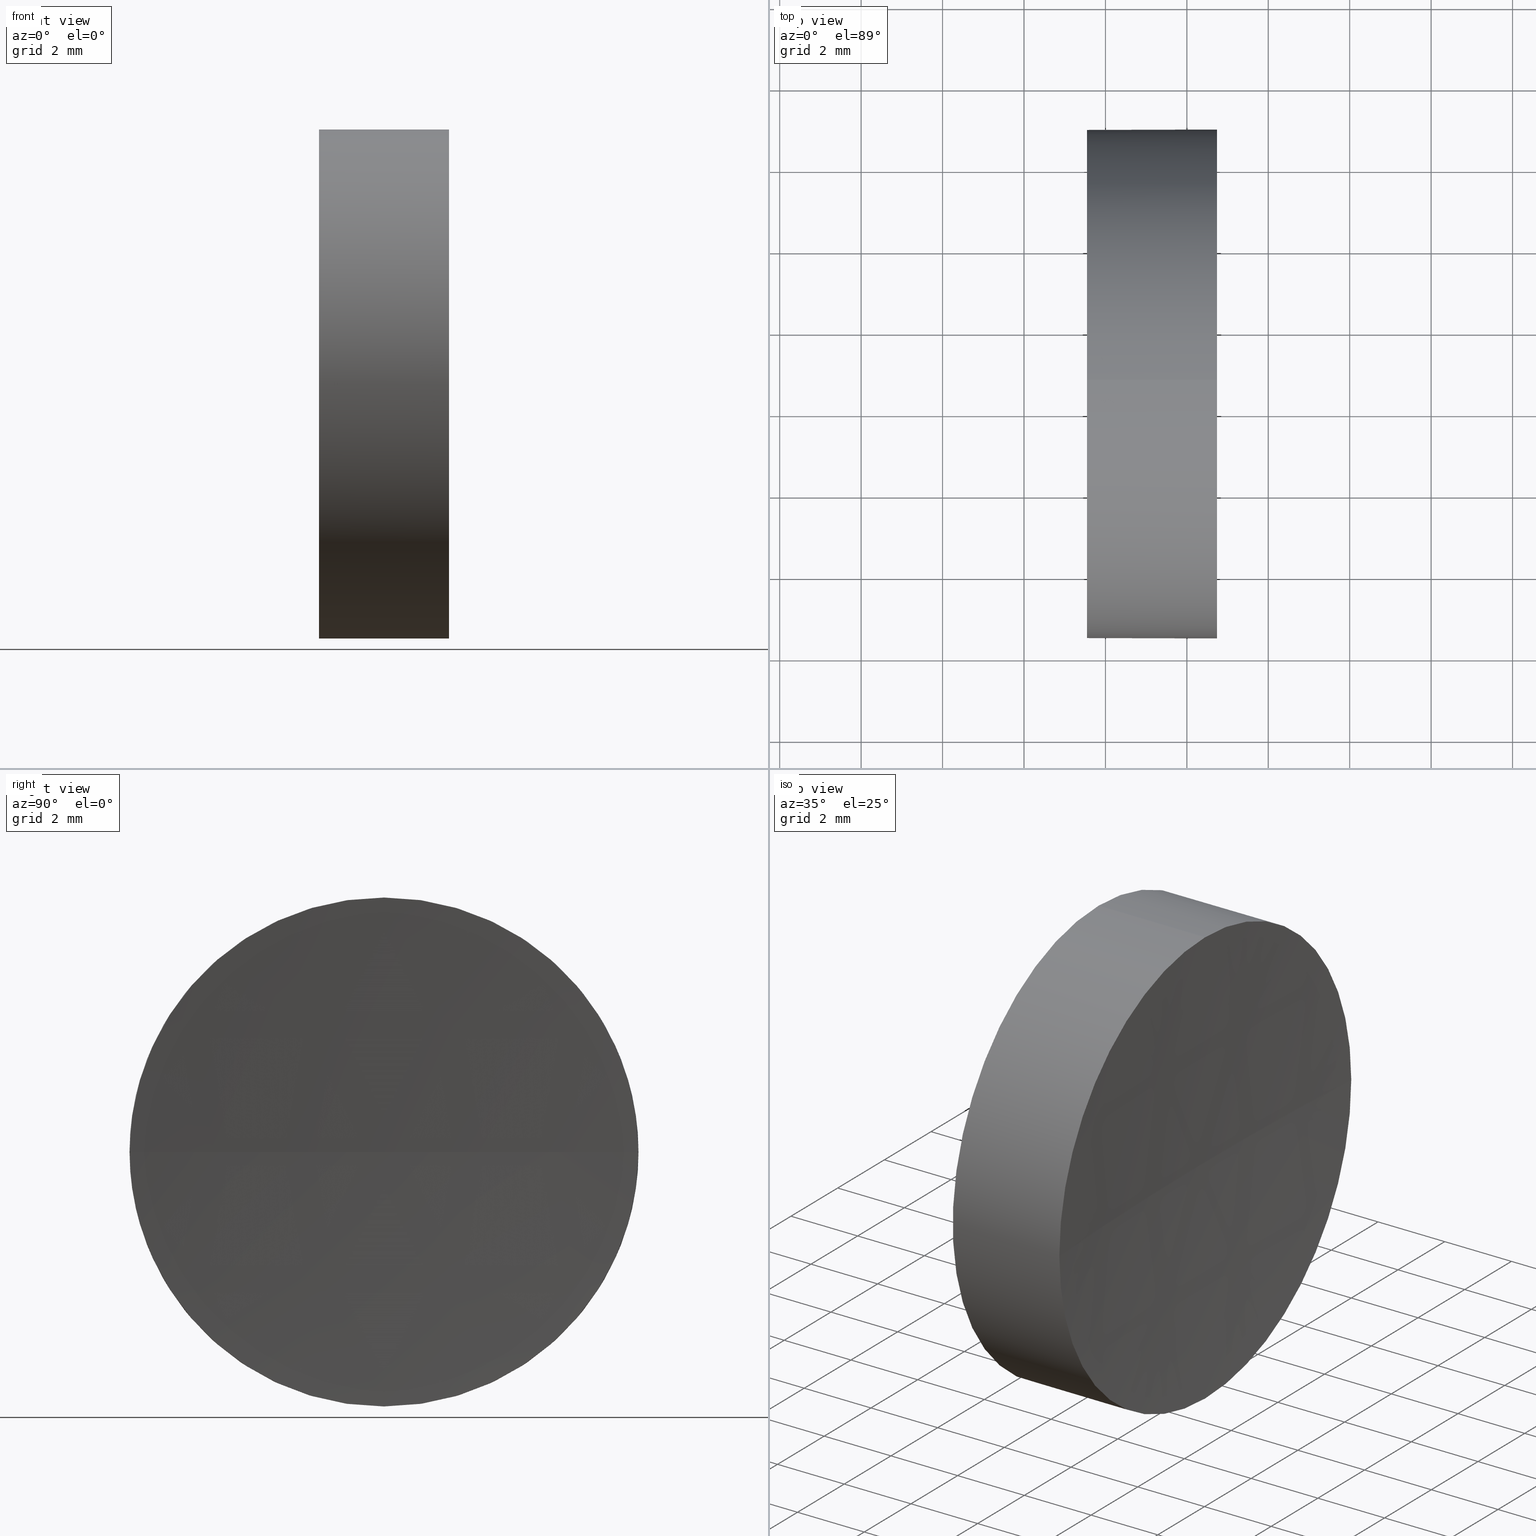
[diagram: canonical four-view strip — front | top / right | iso, engineering-drawing reading convention]
A machine part, canonical four-view strip (front | top / right | iso — engineering-drawing reading convention). The complete STEP part file that produces these views, byte-faithful:
ISO-10303-21;
HEADER;
FILE_DESCRIPTION (( 'STEP AP214' ),
    '1' );
FILE_NAME ('270008.STEP',
    '2019-07-22T02:46:02',
    ( '' ),
    ( '' ),
    'SwSTEP 2.0',
    'SolidWorks 2016',
    '' );
FILE_SCHEMA (( 'AUTOMOTIVE_DESIGN' ));
ENDSEC;

DATA;
#1 = ORIENTED_EDGE ( 'NONE', *, *, #73, .T. ) ;
#2 = PRESENTATION_LAYER_ASSIGNMENT (  '', '', ( #87 ) ) ;
#3 = ORIENTED_EDGE ( 'NONE', *, *, #139, .T. ) ;
#4 = FACE_OUTER_BOUND ( 'NONE', #48, .T. ) ;
#5 = ADVANCED_FACE ( 'NONE', ( #38 ), #113, .F. ) ;
#6 = CIRCLE ( 'NONE', #61, 99.99999999999997200 ) ;
#7 = DIRECTION ( 'NONE',  ( 0.0000000000000000000, -1.000000000000000000, 0.0000000000000000000 ) ) ;
#8 = APPLICATION_CONTEXT ( 'automotive_design' ) ;
#9 = EDGE_LOOP ( 'NONE', ( #168, #89, #177, #27 ) ) ;
#10 = FILL_AREA_STYLE_COLOUR ( '', #58 ) ;
#11 = PRESENTATION_STYLE_ASSIGNMENT (( #142 ) ) ;
#12 = DIRECTION ( 'NONE',  ( 1.000000000000000000, 0.0000000000000000000, 0.0000000000000000000 ) ) ;
#13 = DIRECTION ( 'NONE',  ( -1.000000000000000000, -0.0000000000000000000, -0.0000000000000000000 ) ) ;
#14 = EDGE_CURVE ( 'NONE', #148, #83, #6, .T. ) ;
#15 = VERTEX_POINT ( 'NONE', #49 ) ;
#16 = AXIS2_PLACEMENT_3D ( 'NONE', #19, #63, #167 ) ;
#17 = CYLINDRICAL_SURFACE ( 'NONE', #64, 6.250000000000001800 ) ;
#18 = DIRECTION ( 'NONE',  ( -1.000000000000000000, -0.0000000000000000000, -0.0000000000000000000 ) ) ;
#19 = CARTESIAN_POINT ( 'NONE',  ( 0.0000000000000000000, 0.0000000000000000000, 0.0000000000000000000 ) ) ;
#20 = DIRECTION ( 'NONE',  ( 0.0000000000000000000, 0.0000000000000000000, 1.000000000000000000 ) ) ;
#21 =( LENGTH_UNIT ( ) NAMED_UNIT ( * ) SI_UNIT ( .MILLI., .METRE. ) );
#22 = DIRECTION ( 'NONE',  ( 0.0000000000000000000, 0.0000000000000000000, 1.000000000000000000 ) ) ;
#23 = PRODUCT_DEFINITION_SHAPE ( 'NONE', 'NONE',  #105 ) ;
#24 = FILL_AREA_STYLE ('',( #51 ) ) ;
#25 = EDGE_CURVE ( 'NONE', #60, #34, #157, .T. ) ;
#26 = DIRECTION ( 'NONE',  ( -1.000000000000000000, -0.0000000000000000000, -0.0000000000000000000 ) ) ;
#27 = ORIENTED_EDGE ( 'NONE', *, *, #14, .T. ) ;
#28 = AXIS2_PLACEMENT_3D ( 'NONE', #96, #166, #151 ) ;
#29 = CIRCLE ( 'NONE', #56, 6.250000000000005300 ) ;
#30 = CIRCLE ( 'NONE', #176, 6.250000000000005300 ) ;
#31 = AXIS2_PLACEMENT_3D ( 'NONE', #140, #183, #20 ) ;
#32 = FILL_AREA_STYLE ('',( #10 ) ) ;
#33 = CARTESIAN_POINT ( 'NONE',  ( 60.74183151620172800, 34.68901056168621700, 0.0000000000000000000 ) ) ;
#34 = VERTEX_POINT ( 'NONE', #145 ) ;
#35 = CARTESIAN_POINT ( 'NONE',  ( 57.54632776745975800, 34.68901056168621700, 0.0000000000000000000 ) ) ;
#36 =( NAMED_UNIT ( * ) SI_UNIT ( $, .STERADIAN. ) SOLID_ANGLE_UNIT ( ) );
#37 = CIRCLE ( 'NONE', #40, 6.249999999999998200 ) ;
#38 = FACE_OUTER_BOUND ( 'NONE', #119, .T. ) ;
#39 = SURFACE_STYLE_FILL_AREA ( #32 ) ;
#40 = AXIS2_PLACEMENT_3D ( 'NONE', #35, #68, #94 ) ;
#41 = ORIENTED_EDGE ( 'NONE', *, *, #25, .F. ) ;
#42 = ADVANCED_FACE ( 'NONE', ( #4 ), #99, .F. ) ;
#43 = CLOSED_SHELL ( 'NONE', ( #117, #5, #179, #137, #42 ) ) ;
#44 = ORIENTED_EDGE ( 'NONE', *, *, #54, .F. ) ;
#45 = PRODUCT_CONTEXT ( 'NONE', #80, 'mechanical' ) ;
#46 = CARTESIAN_POINT ( 'NONE',  ( 160.5463279078974200, 34.68901056168621700, 0.0000000000000000000 ) ) ;
#47 = EDGE_CURVE ( 'NONE', #34, #141, #37, .T. ) ;
#48 = EDGE_LOOP ( 'NONE', ( #136, #88 ) ) ;
#49 = CARTESIAN_POINT ( 'NONE',  ( 60.74183151620172800, 34.68901056168621700, -6.250000000000004400 ) ) ;
#50 = VECTOR ( 'NONE', #184, 1000.000000000000000 ) ;
#51 = FILL_AREA_STYLE_COLOUR ( '', #74 ) ;
#52 = AXIS2_PLACEMENT_3D ( 'NONE', #97, #173, #127 ) ;
#53 = ORIENTED_EDGE ( 'NONE', *, *, #25, .T. ) ;
#54 = EDGE_CURVE ( 'NONE', #141, #34, #150, .T. ) ;
#55 = ADVANCED_BREP_SHAPE_REPRESENTATION ( '270008', ( #110, #16 ), #104 ) ;
#56 = AXIS2_PLACEMENT_3D ( 'NONE', #33, #155, #144 ) ;
#57 = CYLINDRICAL_SURFACE ( 'NONE', #67, 6.250000000000001800 ) ;
#58 = COLOUR_RGB ( '',1.000000000000000000, 1.000000000000000000, 1.000000000000000000 ) ;
#59 = AXIS2_PLACEMENT_3D ( 'NONE', #102, #131, #175 ) ;
#60 = VERTEX_POINT ( 'NONE', #123 ) ;
#61 = AXIS2_PLACEMENT_3D ( 'NONE', #46, #154, #158 ) ;
#62 = VECTOR ( 'NONE', #152, 1000.000000000000000 ) ;
#63 = DIRECTION ( 'NONE',  ( 0.0000000000000000000, 0.0000000000000000000, 1.000000000000000000 ) ) ;
#64 = AXIS2_PLACEMENT_3D ( 'NONE', #65, #13, #172 ) ;
#65 = CARTESIAN_POINT ( 'NONE',  ( 54.49257150108255100, 34.68901056168621700, 0.0000000000000000000 ) ) ;
#66 = SPHERICAL_SURFACE ( 'NONE', #28, 99.99999999999997200 ) ;
#67 = AXIS2_PLACEMENT_3D ( 'NONE', #112, #26, #146 ) ;
#68 = DIRECTION ( 'NONE',  ( -1.000000000000000000, -0.0000000000000000000, -0.0000000000000000000 ) ) ;
#69 =( LENGTH_UNIT ( ) NAMED_UNIT ( * ) SI_UNIT ( .MILLI., .METRE. ) );
#70 = AXIS2_PLACEMENT_3D ( 'NONE', #84, #18, #181 ) ;
#71 = ORIENTED_EDGE ( 'NONE', *, *, #73, .F. ) ;
#72 = PRODUCT ( '270008', '270008', '', ( #45 ) ) ;
#73 = EDGE_CURVE ( 'NONE', #15, #148, #114, .T. ) ;
#74 = COLOUR_RGB ( '',1.000000000000000000, 1.000000000000000000, 1.000000000000000000 ) ;
#75 = EDGE_CURVE ( 'NONE', #60, #95, #30, .T. ) ;
#76 = SURFACE_STYLE_FILL_AREA ( #24 ) ;
#77 = PRODUCT_DEFINITION_FORMATION_WITH_SPECIFIED_SOURCE ( '�κ�', '', #72, .NOT_KNOWN. ) ;
#78 = ORIENTED_EDGE ( 'NONE', *, *, #14, .F. ) ;
#79 =( NAMED_UNIT ( * ) SI_UNIT ( $, .STERADIAN. ) SOLID_ANGLE_UNIT ( ) );
#80 = APPLICATION_CONTEXT ( 'automotive_design' ) ;
#81 = STYLED_ITEM ( 'NONE', ( #11 ), #55 ) ;
#82 =( NAMED_UNIT ( * ) SI_UNIT ( $, .STERADIAN. ) SOLID_ANGLE_UNIT ( ) );
#83 = VERTEX_POINT ( 'NONE', #143 ) ;
#84 = CARTESIAN_POINT ( 'NONE',  ( 60.74183151620172800, 34.68901056168621700, 0.0000000000000000000 ) ) ;
#85 = CARTESIAN_POINT ( 'NONE',  ( 57.54632776745975800, 34.68901056168621700, -6.249999999999998200 ) ) ;
#86 = SURFACE_STYLE_USAGE ( .BOTH. , #160 ) ;
#87 = STYLED_ITEM ( 'NONE', ( #185 ), #110 ) ;
#88 = ORIENTED_EDGE ( 'NONE', *, *, #54, .T. ) ;
#89 = ORIENTED_EDGE ( 'NONE', *, *, #75, .F. ) ;
#90 = AXIS2_PLACEMENT_3D ( 'NONE', #125, #22, #7 ) ;
#91 = UNCERTAINTY_MEASURE_WITH_UNIT (LENGTH_MEASURE( 1.000000000000000100E-005 ), #153, 'distance_accuracy_value', 'NONE');
#92 = CIRCLE ( 'NONE', #70, 6.250000000000005300 ) ;
#93 = SURFACE_SIDE_STYLE ('',( #39 ) ) ;
#94 = DIRECTION ( 'NONE',  ( 0.0000000000000000000, 0.0000000000000000000, 1.000000000000000000 ) ) ;
#95 = VERTEX_POINT ( 'NONE', #169 ) ;
#96 = CARTESIAN_POINT ( 'NONE',  ( 160.5463279078974200, 34.68901056168621700, 0.0000000000000000000 ) ) ;
#97 = CARTESIAN_POINT ( 'NONE',  ( 60.74183151620172800, 34.68901056168621700, 0.0000000000000000000 ) ) ;
#98 =( NAMED_UNIT ( * ) PLANE_ANGLE_UNIT ( ) SI_UNIT ( $, .RADIAN. ) );
#99 = PLANE ( 'NONE',  #135 ) ;
#100 = CARTESIAN_POINT ( 'NONE',  ( 54.49257150108255100, 34.68901056168621700, -6.250000000000001800 ) ) ;
#101 = CARTESIAN_POINT ( 'NONE',  ( 60.74183151620172800, 34.68901056168621700, 0.0000000000000000000 ) ) ;
#102 = CARTESIAN_POINT ( 'NONE',  ( 160.5463279078974200, 34.68901056168621700, 0.0000000000000000000 ) ) ;
#103 = ORIENTED_EDGE ( 'NONE', *, *, #139, .F. ) ;
#104 =( GEOMETRIC_REPRESENTATION_CONTEXT ( 3 ) GLOBAL_UNCERTAINTY_ASSIGNED_CONTEXT ( ( #128 ) ) GLOBAL_UNIT_ASSIGNED_CONTEXT ( ( #21, #98, #79 ) ) REPRESENTATION_CONTEXT ( 'NONE', 'WORKASPACE' ) );
#105 = PRODUCT_DEFINITION ( 'δ֪', '', #77, #115 ) ;
#106 = EDGE_LOOP ( 'NONE', ( #149, #1, #163, #53, #44 ) ) ;
#107 = CARTESIAN_POINT ( 'NONE',  ( 54.49257150108255100, 34.68901056168621700, 6.250000000000001800 ) ) ;
#108 = APPLICATION_PROTOCOL_DEFINITION ( 'draft international standard', 'automotive_design', 1998, #8 ) ;
#109 = ORIENTED_EDGE ( 'NONE', *, *, #47, .F. ) ;
#110 = MANIFOLD_SOLID_BREP ( '��ת1', #43 ) ;
#111 = DIRECTION ( 'NONE',  ( 0.0000000000000000000, 0.0000000000000000000, 1.000000000000000000 ) ) ;
#112 = CARTESIAN_POINT ( 'NONE',  ( 54.49257150108255100, 34.68901056168621700, 0.0000000000000000000 ) ) ;
#113 = SPHERICAL_SURFACE ( 'NONE', #90, 99.99999999999997200 ) ;
#114 = CIRCLE ( 'NONE', #52, 6.250000000000005300 ) ;
#115 = PRODUCT_DEFINITION_CONTEXT ( 'detailed design', #8, 'design' ) ;
#116 = EDGE_CURVE ( 'NONE', #95, #83, #138, .T. ) ;
#117 = ADVANCED_FACE ( 'NONE', ( #165 ), #57, .T. ) ;
#118 = EDGE_CURVE ( 'NONE', #15, #141, #133, .T. ) ;
#119 = EDGE_LOOP ( 'NONE', ( #103, #120, #78, #71 ) ) ;
#120 = ORIENTED_EDGE ( 'NONE', *, *, #116, .T. ) ;
#121 = PRESENTATION_LAYER_ASSIGNMENT (  '', '', ( #81 ) ) ;
#122 = APPLICATION_PROTOCOL_DEFINITION ( 'draft international standard', 'automotive_design', 1998, #80 ) ;
#123 = CARTESIAN_POINT ( 'NONE',  ( 60.74183151620172800, 34.68901056168621700, 6.250000000000004400 ) ) ;
#124 = PRODUCT_RELATED_PRODUCT_CATEGORY ( 'part', '', ( #72 ) ) ;
#125 = CARTESIAN_POINT ( 'NONE',  ( 160.5463279078974200, 34.68901056168621700, 0.0000000000000000000 ) ) ;
#126 =( NAMED_UNIT ( * ) PLANE_ANGLE_UNIT ( ) SI_UNIT ( $, .RADIAN. ) );
#127 = DIRECTION ( 'NONE',  ( 0.0000000000000000000, 0.0000000000000000000, 1.000000000000000000 ) ) ;
#128 = UNCERTAINTY_MEASURE_WITH_UNIT (LENGTH_MEASURE( 1.000000000000000100E-005 ), #21, 'distance_accuracy_value', 'NONE');
#129 = DIRECTION ( 'NONE',  ( 0.0000000000000000000, 0.0000000000000000000, -1.000000000000000000 ) ) ;
#130 = DIRECTION ( 'NONE',  ( -1.000000000000000000, -0.0000000000000000000, -0.0000000000000000000 ) ) ;
#131 = DIRECTION ( 'NONE',  ( 0.0000000000000000000, -1.224646799147353200E-016, 1.000000000000000000 ) ) ;
#132 = EDGE_LOOP ( 'NONE', ( #3, #178, #109, #41, #161 ) ) ;
#133 = LINE ( 'NONE', #100, #50 ) ;
#134 = SHAPE_DEFINITION_REPRESENTATION ( #23, #55 ) ;
#135 = AXIS2_PLACEMENT_3D ( 'NONE', #156, #12, #129 ) ;
#136 = ORIENTED_EDGE ( 'NONE', *, *, #47, .T. ) ;
#137 = ADVANCED_FACE ( 'NONE', ( #180 ), #17, .T. ) ;
#138 = CIRCLE ( 'NONE', #59, 99.99999999999997200 ) ;
#139 = EDGE_CURVE ( 'NONE', #95, #15, #92, .T. ) ;
#140 = CARTESIAN_POINT ( 'NONE',  ( 57.54632776745975800, 34.68901056168621700, 0.0000000000000000000 ) ) ;
#141 = VERTEX_POINT ( 'NONE', #85 ) ;
#142 = SURFACE_STYLE_USAGE ( .BOTH. , #93 ) ;
#143 = CARTESIAN_POINT ( 'NONE',  ( 60.54632790789743500, 34.68901056168621000, 0.0000000000000000000 ) ) ;
#144 = DIRECTION ( 'NONE',  ( 0.0000000000000000000, 0.0000000000000000000, 1.000000000000000000 ) ) ;
#145 = CARTESIAN_POINT ( 'NONE',  ( 57.54632776745975800, 34.68901056168621700, 6.249999999999998200 ) ) ;
#146 = DIRECTION ( 'NONE',  ( 0.0000000000000000000, 0.0000000000000000000, 1.000000000000000000 ) ) ;
#147 = MECHANICAL_DESIGN_GEOMETRIC_PRESENTATION_REPRESENTATION (  '', ( #81 ), #170 ) ;
#148 = VERTEX_POINT ( 'NONE', #171 ) ;
#149 = ORIENTED_EDGE ( 'NONE', *, *, #118, .F. ) ;
#150 = CIRCLE ( 'NONE', #31, 6.249999999999998200 ) ;
#151 = DIRECTION ( 'NONE',  ( 0.0000000000000000000, -1.000000000000000000, 0.0000000000000000000 ) ) ;
#152 = DIRECTION ( 'NONE',  ( -1.000000000000000000, -0.0000000000000000000, -0.0000000000000000000 ) ) ;
#153 =( LENGTH_UNIT ( ) NAMED_UNIT ( * ) SI_UNIT ( .MILLI., .METRE. ) );
#154 = DIRECTION ( 'NONE',  ( 0.0000000000000000000, 0.0000000000000000000, -1.000000000000000000 ) ) ;
#155 = DIRECTION ( 'NONE',  ( -1.000000000000000000, -0.0000000000000000000, -0.0000000000000000000 ) ) ;
#156 = CARTESIAN_POINT ( 'NONE',  ( 57.54632776745975800, 34.68901056168621700, 0.0000000000000000000 ) ) ;
#157 = LINE ( 'NONE', #107, #62 ) ;
#158 = DIRECTION ( 'NONE',  ( -1.000000000000000000, 0.0000000000000000000, 0.0000000000000000000 ) ) ;
#159 = EDGE_CURVE ( 'NONE', #148, #60, #29, .T. ) ;
#160 = SURFACE_SIDE_STYLE ('',( #76 ) ) ;
#161 = ORIENTED_EDGE ( 'NONE', *, *, #75, .T. ) ;
#162 =( GEOMETRIC_REPRESENTATION_CONTEXT ( 3 ) GLOBAL_UNCERTAINTY_ASSIGNED_CONTEXT ( ( #164 ) ) GLOBAL_UNIT_ASSIGNED_CONTEXT ( ( #69, #186, #36 ) ) REPRESENTATION_CONTEXT ( 'NONE', 'WORKASPACE' ) );
#163 = ORIENTED_EDGE ( 'NONE', *, *, #159, .T. ) ;
#164 = UNCERTAINTY_MEASURE_WITH_UNIT (LENGTH_MEASURE( 1.000000000000000100E-005 ), #69, 'distance_accuracy_value', 'NONE');
#165 = FACE_OUTER_BOUND ( 'NONE', #132, .T. ) ;
#166 = DIRECTION ( 'NONE',  ( 0.0000000000000000000, 0.0000000000000000000, 1.000000000000000000 ) ) ;
#167 = DIRECTION ( 'NONE',  ( 1.000000000000000000, 0.0000000000000000000, 0.0000000000000000000 ) ) ;
#168 = ORIENTED_EDGE ( 'NONE', *, *, #116, .F. ) ;
#169 = CARTESIAN_POINT ( 'NONE',  ( 60.74183151620172100, 40.93901056168618900, 7.654042494670921100E-016 ) ) ;
#170 =( GEOMETRIC_REPRESENTATION_CONTEXT ( 3 ) GLOBAL_UNCERTAINTY_ASSIGNED_CONTEXT ( ( #91 ) ) GLOBAL_UNIT_ASSIGNED_CONTEXT ( ( #153, #126, #82 ) ) REPRESENTATION_CONTEXT ( 'NONE', 'WORKASPACE' ) );
#171 = CARTESIAN_POINT ( 'NONE',  ( 60.74183151620172100, 28.43901056168624600, 0.0000000000000000000 ) ) ;
#172 = DIRECTION ( 'NONE',  ( 0.0000000000000000000, 0.0000000000000000000, 1.000000000000000000 ) ) ;
#173 = DIRECTION ( 'NONE',  ( -1.000000000000000000, -0.0000000000000000000, -0.0000000000000000000 ) ) ;
#174 = FACE_OUTER_BOUND ( 'NONE', #9, .T. ) ;
#175 = DIRECTION ( 'NONE',  ( 0.0000000000000000000, -1.000000000000000000, -1.224646799147353200E-016 ) ) ;
#176 = AXIS2_PLACEMENT_3D ( 'NONE', #101, #130, #111 ) ;
#177 = ORIENTED_EDGE ( 'NONE', *, *, #159, .F. ) ;
#178 = ORIENTED_EDGE ( 'NONE', *, *, #118, .T. ) ;
#179 = ADVANCED_FACE ( 'NONE', ( #174 ), #66, .F. ) ;
#180 = FACE_OUTER_BOUND ( 'NONE', #106, .T. ) ;
#181 = DIRECTION ( 'NONE',  ( 0.0000000000000000000, 0.0000000000000000000, 1.000000000000000000 ) ) ;
#182 = MECHANICAL_DESIGN_GEOMETRIC_PRESENTATION_REPRESENTATION (  '', ( #87 ), #162 ) ;
#183 = DIRECTION ( 'NONE',  ( -1.000000000000000000, -0.0000000000000000000, -0.0000000000000000000 ) ) ;
#184 = DIRECTION ( 'NONE',  ( -1.000000000000000000, -0.0000000000000000000, -0.0000000000000000000 ) ) ;
#185 = PRESENTATION_STYLE_ASSIGNMENT (( #86 ) ) ;
#186 =( NAMED_UNIT ( * ) PLANE_ANGLE_UNIT ( ) SI_UNIT ( $, .RADIAN. ) );
ENDSEC;
END-ISO-10303-21;
